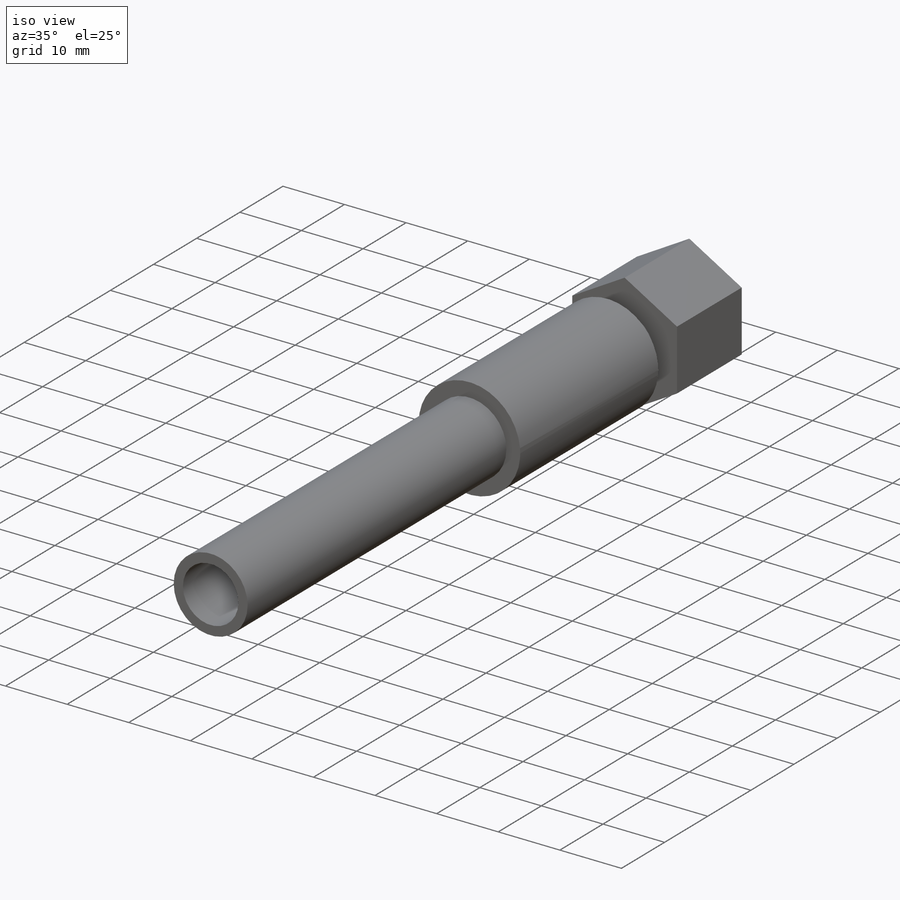
[diagram: iso view]
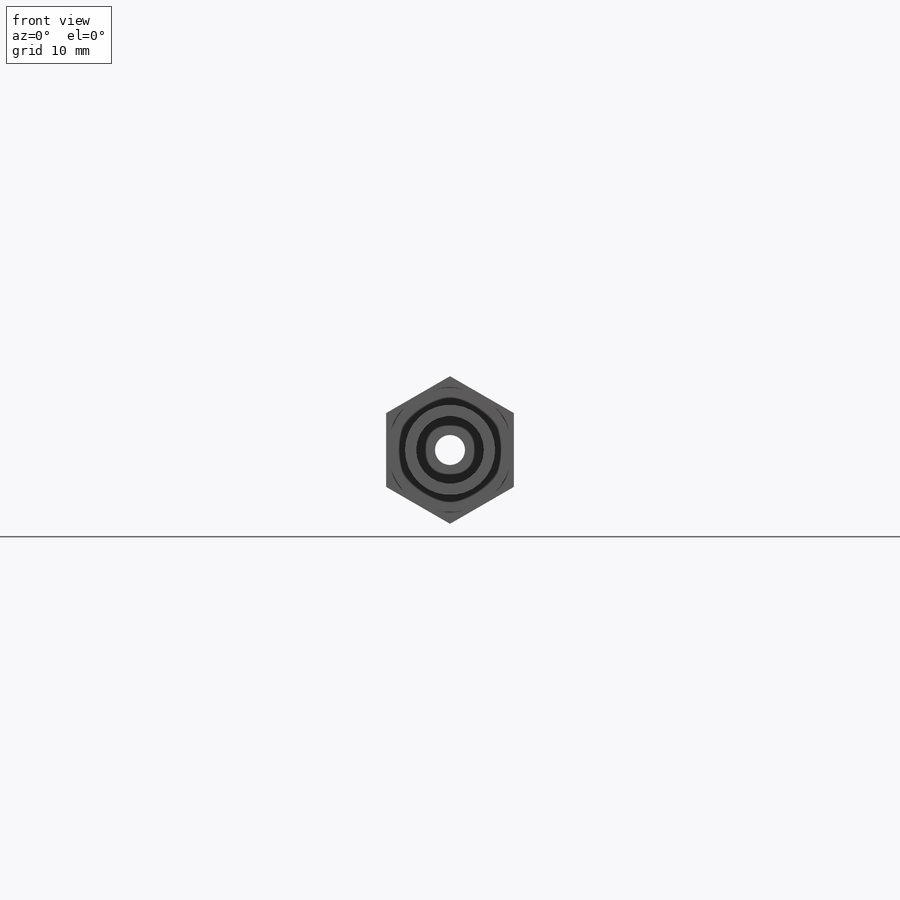
[diagram: front view]
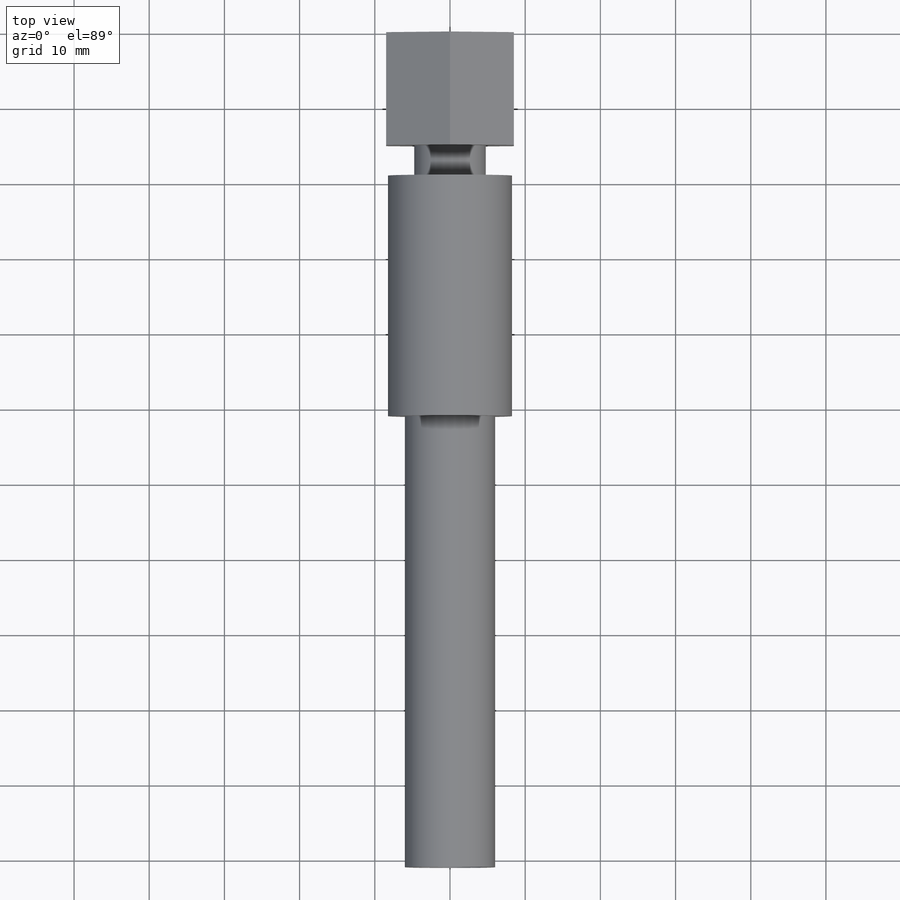
[diagram: top view]
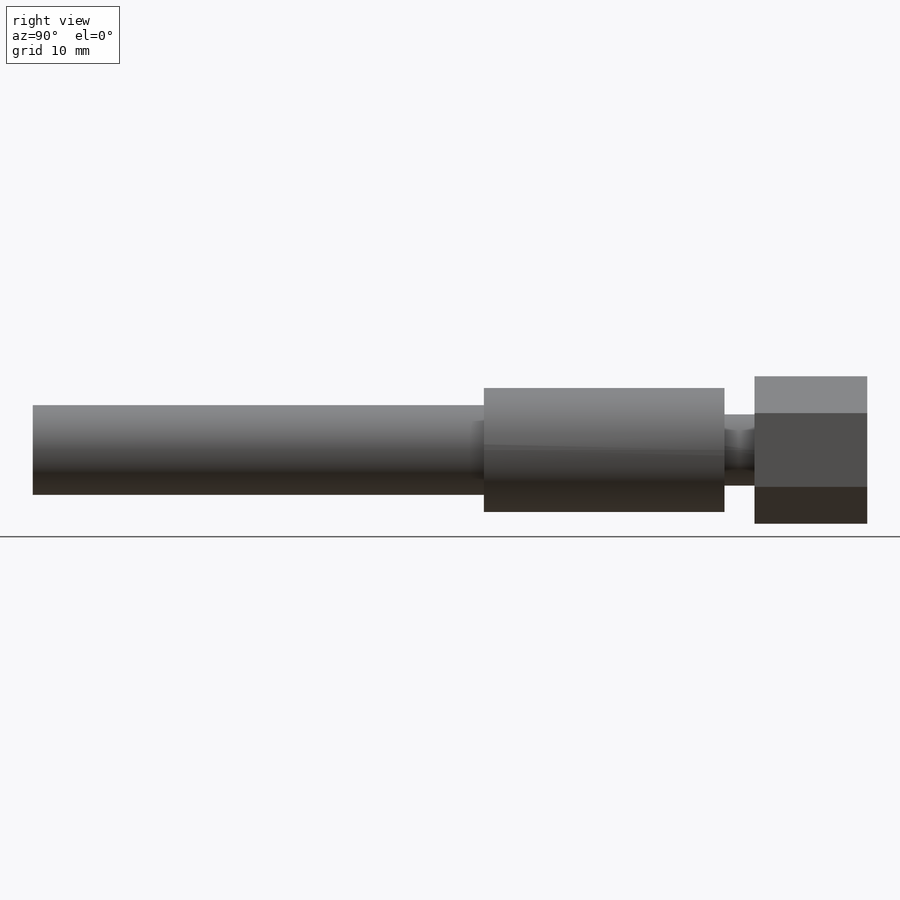
[diagram: right view]
SOLIDWORKS PART (.sldprt)
format: sldprt  version: not decoded by parser v0  size: 383,488 bytes
history: native  units: mm
features: sketch x7, extrude x4, plane x3, cut_extrude x3, material x1 (+13 scaffold rows collapsed; 1 parser-record rows omitted)
feature tree (32):
  parser-record x1  (decoder bookkeeping rows leaked as tree rows — omitted from the tree; the rows remain in map.json)
  scaffold x13  (default folders/planes/origin — collapsed)
  material  "Material <not specified>"
  plane  "Plane1"
  plane  "Plane2"
  plane  "Plane3"
  sketch  "Sketch1"  dims[D1=22.0mm]
  extrude  "Base-Extrude"  Depth=15mm
  sketch  "Sketch2"  dims[D1=16.662mm D2=14.0mm]
  cut_extrude  "Cut-Extrude1"  Depth=12mm
  sketch  "Sketch4"  dims[D1=13.5mm]
  extrude  "Boss-Extrude1"  Depth=5mm
  sketch  "Sketch5"  dims[D1=21.0mm]
  cut_extrude  "Cut-Extrude2"  [1 undecoded]
  sketch  "Sketch3"  dims[D1=7.0mm]
  extrude  "Boss-Extrude2"  Depth=34mm
  sketch  "Sketch6"  dims[D1=17.0mm]
  extrude  "Boss-Extrude3"  Depth=60mm slange længde=60mm
  sketch  "Sketch7"  dims[D1=14.0mm]
  cut_extrude  "Cut-Extrude3"  [1 undecoded]
decode coverage: 12 of 14 modeling features carry decoded parameters
note: 2 parameter values undecoded
note: suppression state not decoded; provenance and decode notes live in map.json
